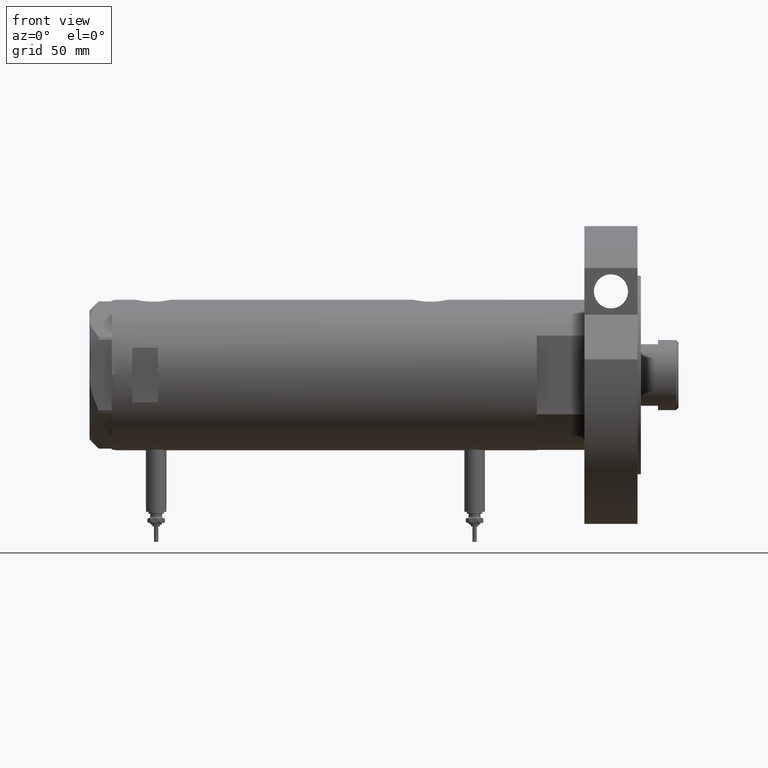
[diagram: clean part render]
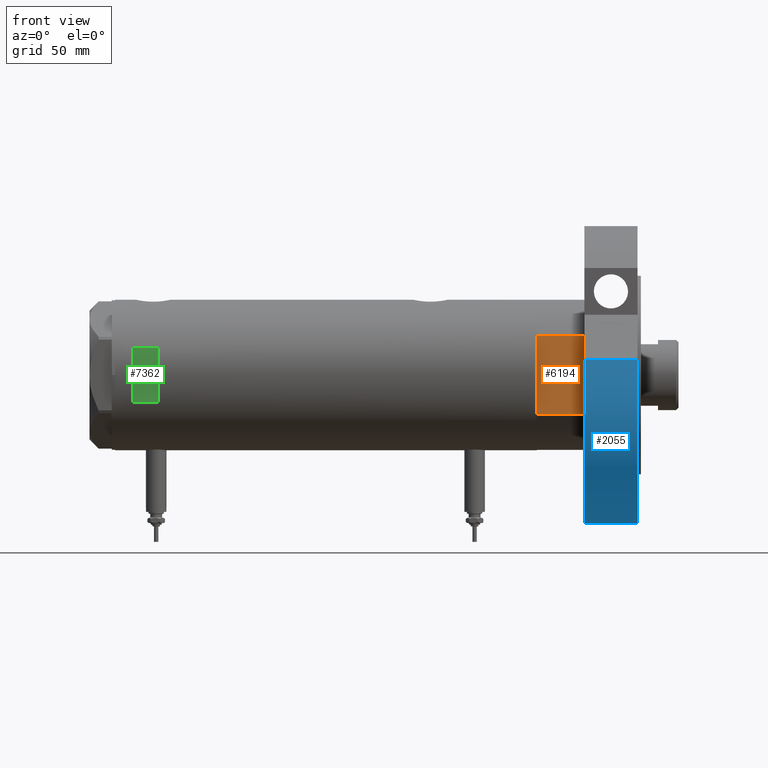
[diagram: same view with three faces highlighted in distinct colors, each labeled with its STEP entity id]
A machine part, front view with three faces highlighted in distinct colors.
Their STEP definitions:

[orange] entity #6194 — the highlighted planar face has unit normal (-0, 1, 0).
#47 = LINE ( 'NONE', #7002, #5844 ) ;
#295 = CARTESIAN_POINT ( 'NONE',  ( 13.91941090707505957, -37.50000000000000000, 0.000000000000000000 ) ) ;
#565 = ORIENTED_EDGE ( 'NONE', *, *, #6295, .F. ) ;
#795 = LINE ( 'NONE', #2012, #2580 ) ;
#928 = EDGE_CURVE ( 'NONE', #5792, #7241, #3531, .T. ) ;
#1027 = CARTESIAN_POINT ( 'NONE',  ( -23.01629857296780557, -37.50000000000000000, 0.000000000000000000 ) ) ;
#1042 = LINE ( 'NONE', #3362, #7058 ) ;
#1060 = CARTESIAN_POINT ( 'NONE',  ( -23.01629857296780557, -37.50000000000000000, 27.89999999999999858 ) ) ;
#1237 = AXIS2_PLACEMENT_3D ( 'NONE', #1754, #4046, #3470 ) ;
#1365 = CARTESIAN_POINT ( 'NONE',  ( -13.91941090707505957, -37.50000000000000000, 0.000000000000000000 ) ) ;
#1632 = EDGE_CURVE ( 'NONE', #3429, #2675, #47, .T. ) ;
#1754 = CARTESIAN_POINT ( 'NONE',  ( -23.01629857296780557, -37.50000000000000000, 0.000000000000000000 ) ) ;
#1922 = ORIENTED_EDGE ( 'NONE', *, *, #2469, .F. ) ;
#2012 = CARTESIAN_POINT ( 'NONE',  ( -23.01629857296780557, -37.50000000000000000, 0.000000000000000000 ) ) ;
#2074 = VECTOR ( 'NONE', #4122, 1000.000000000000000 ) ;
#2202 = DIRECTION ( 'NONE',  ( -1.000000000000000000, -0.000000000000000000, -0.000000000000000000 ) ) ;
#2219 = VECTOR ( 'NONE', #6915, 1000.000000000000000 ) ;
#2281 = CARTESIAN_POINT ( 'NONE',  ( -23.01629857296780557, -37.50000000000000000, 27.89999999999999858 ) ) ;
#2291 = CARTESIAN_POINT ( 'NONE',  ( -23.01629857296780557, -37.50000000000000000, 0.000000000000000000 ) ) ;
#2414 = VERTEX_POINT ( 'NONE', #5868 ) ;
#2469 = EDGE_CURVE ( 'NONE', #6278, #3429, #1042, .T. ) ;
#2580 = VECTOR ( 'NONE', #3144, 1000.000000000000000 ) ;
#2675 = VERTEX_POINT ( 'NONE', #6998 ) ;
#3144 = DIRECTION ( 'NONE',  ( -1.000000000000000000, -0.000000000000000000, -0.000000000000000000 ) ) ;
#3362 = CARTESIAN_POINT ( 'NONE',  ( -23.01629857296780557, -37.50000000000000000, 0.000000000000000000 ) ) ;
#3405 = EDGE_LOOP ( 'NONE', ( #6211, #5898, #6965, #1922, #6795, #565, #6818 ) ) ;
#3429 = VERTEX_POINT ( 'NONE', #1027 ) ;
#3470 = DIRECTION ( 'NONE',  ( 0.000000000000000000, -0.000000000000000000, 1.000000000000000000 ) ) ;
#3531 = LINE ( 'NONE', #2281, #3566 ) ;
#3547 = CARTESIAN_POINT ( 'NONE',  ( 23.01629857296780557, -37.50000000000000000, 0.000000000000000000 ) ) ;
#3566 = VECTOR ( 'NONE', #6981, 1000.000000000000000 ) ;
#4046 = DIRECTION ( 'NONE',  ( -0.000000000000000000, 1.000000000000000000, 0.000000000000000000 ) ) ;
#4122 = DIRECTION ( 'NONE',  ( -0.000000000000000000, -0.000000000000000000, 1.000000000000000000 ) ) ;
#4188 = PLANE ( 'NONE',  #1237 ) ;
#4698 = CARTESIAN_POINT ( 'NONE',  ( 0.000000000000000000, -37.50000000000000000, 27.89999999999999858 ) ) ;
#5323 = EDGE_CURVE ( 'NONE', #2414, #5792, #6993, .T. ) ;
#5609 = LINE ( 'NONE', #2291, #2219 ) ;
#5640 = VECTOR ( 'NONE', #2202, 1000.000000000000000 ) ;
#5699 = DIRECTION ( 'NONE',  ( -1.000000000000000000, -0.000000000000000000, -0.000000000000000000 ) ) ;
#5792 = VERTEX_POINT ( 'NONE', #6116 ) ;
#5844 = VECTOR ( 'NONE', #6893, 1000.000000000000000 ) ;
#5868 = CARTESIAN_POINT ( 'NONE',  ( 23.01629857296780557, -37.50000000000000000, 0.000000000000000000 ) ) ;
#5898 = ORIENTED_EDGE ( 'NONE', *, *, #7466, .T. ) ;
#6116 = CARTESIAN_POINT ( 'NONE',  ( 23.01629857296780557, -37.50000000000000000, 27.89999999999999858 ) ) ;
#6194 = ADVANCED_FACE ( 'NONE', ( #7018 ), #4188, .F. ) ;
#6211 = ORIENTED_EDGE ( 'NONE', *, *, #928, .T. ) ;
#6278 = VERTEX_POINT ( 'NONE', #1365 ) ;
#6295 = EDGE_CURVE ( 'NONE', #2414, #7325, #795, .T. ) ;
#6795 = ORIENTED_EDGE ( 'NONE', *, *, #7085, .F. ) ;
#6818 = ORIENTED_EDGE ( 'NONE', *, *, #5323, .T. ) ;
#6893 = DIRECTION ( 'NONE',  ( -0.000000000000000000, -0.000000000000000000, 1.000000000000000000 ) ) ;
#6915 = DIRECTION ( 'NONE',  ( -1.000000000000000000, -0.000000000000000000, -0.000000000000000000 ) ) ;
#6965 = ORIENTED_EDGE ( 'NONE', *, *, #1632, .F. ) ;
#6981 = DIRECTION ( 'NONE',  ( -1.000000000000000000, -0.000000000000000000, -0.000000000000000000 ) ) ;
#6993 = LINE ( 'NONE', #3547, #2074 ) ;
#6998 = CARTESIAN_POINT ( 'NONE',  ( -23.01629857296780557, -37.50000000000000000, 27.89999999999999858 ) ) ;
#7002 = CARTESIAN_POINT ( 'NONE',  ( -23.01629857296780557, -37.50000000000000000, 0.000000000000000000 ) ) ;
#7018 = FACE_OUTER_BOUND ( 'NONE', #3405, .T. ) ;
#7058 = VECTOR ( 'NONE', #5699, 1000.000000000000000 ) ;
#7085 = EDGE_CURVE ( 'NONE', #7325, #6278, #5609, .T. ) ;
#7241 = VERTEX_POINT ( 'NONE', #4698 ) ;
#7325 = VERTEX_POINT ( 'NONE', #295 ) ;
#7426 = LINE ( 'NONE', #1060, #5640 ) ;
#7466 = EDGE_CURVE ( 'NONE', #7241, #2675, #7426, .T. ) ;

[blue] entity #2055 — the highlighted cylindrical surface (partial cylindrical patch) has radius 87 mm, axis along (-1, -0, 0).
#233 = CARTESIAN_POINT ( 'NONE',  ( 0.000000000000000000, 0.000000000000000000, 31.00000000000000000 ) ) ;
#309 = CARTESIAN_POINT ( 'NONE',  ( -87.00000000000000000, 0.000000000000000000, 0.000000000000000000 ) ) ;
#354 = AXIS2_PLACEMENT_3D ( 'NONE', #233, #3858, #4320 ) ;
#403 = VERTEX_POINT ( 'NONE', #2603 ) ;
#459 = VERTEX_POINT ( 'NONE', #2255 ) ;
#533 = CARTESIAN_POINT ( 'NONE',  ( 0.000000000000000000, 0.000000000000000000, 0.000000000000000000 ) ) ;
#832 = CARTESIAN_POINT ( 'NONE',  ( 0.000000000000000000, 0.000000000000000000, 31.00000000000000000 ) ) ;
#890 = DIRECTION ( 'NONE',  ( 1.000000000000000000, 0.000000000000000000, 0.000000000000000000 ) ) ;
#1117 = CIRCLE ( 'NONE', #5369, 87.00000000000000000 ) ;
#1325 = ORIENTED_EDGE ( 'NONE', *, *, #5778, .T. ) ;
#1520 = DIRECTION ( 'NONE',  ( -0.000000000000000000, -0.000000000000000000, 1.000000000000000000 ) ) ;
#1965 = VERTEX_POINT ( 'NONE', #2699 ) ;
#2055 = ADVANCED_FACE ( 'NONE', ( #3838 ), #3691, .T. ) ;
#2255 = CARTESIAN_POINT ( 'NONE',  ( 9.196694222441541555, 86.51254715576759224, 0.000000000000000000 ) ) ;
#2258 = ORIENTED_EDGE ( 'NONE', *, *, #7303, .F. ) ;
#2288 = EDGE_LOOP ( 'NONE', ( #2258, #6693, #7123, #1325 ) ) ;
#2548 = CARTESIAN_POINT ( 'NONE',  ( -87.00000000000000000, 0.000000000000000000, 31.00000000000000000 ) ) ;
#2603 = CARTESIAN_POINT ( 'NONE',  ( -87.00000000000000000, 0.000000000000000000, 31.00000000000000000 ) ) ;
#2699 = CARTESIAN_POINT ( 'NONE',  ( 9.196694222441541555, 86.51254715576759224, 31.00000000000000000 ) ) ;
#2803 = VECTOR ( 'NONE', #1520, 1000.000000000000000 ) ;
#3122 = DIRECTION ( 'NONE',  ( 0.000000000000000000, 0.000000000000000000, 1.000000000000000000 ) ) ;
#3194 = LINE ( 'NONE', #2548, #6129 ) ;
#3691 = CYLINDRICAL_SURFACE ( 'NONE', #5349, 87.00000000000000000 ) ;
#3729 = DIRECTION ( 'NONE',  ( -0.000000000000000000, -0.000000000000000000, -1.000000000000000000 ) ) ;
#3838 = FACE_OUTER_BOUND ( 'NONE', #2288, .T. ) ;
#3858 = DIRECTION ( 'NONE',  ( 0.000000000000000000, 0.000000000000000000, 1.000000000000000000 ) ) ;
#4320 = DIRECTION ( 'NONE',  ( 1.000000000000000000, 0.000000000000000000, 0.000000000000000000 ) ) ;
#4469 = EDGE_CURVE ( 'NONE', #459, #1965, #6748, .T. ) ;
#4666 = VERTEX_POINT ( 'NONE', #309 ) ;
#4671 = EDGE_CURVE ( 'NONE', #1965, #403, #6118, .T. ) ;
#5349 = AXIS2_PLACEMENT_3D ( 'NONE', #832, #6746, #6060 ) ;
#5369 = AXIS2_PLACEMENT_3D ( 'NONE', #533, #3122, #890 ) ;
#5778 = EDGE_CURVE ( 'NONE', #459, #4666, #1117, .T. ) ;
#6060 = DIRECTION ( 'NONE',  ( -1.000000000000000000, 0.000000000000000000, 0.000000000000000000 ) ) ;
#6118 = CIRCLE ( 'NONE', #354, 87.00000000000000000 ) ;
#6129 = VECTOR ( 'NONE', #3729, 1000.000000000000000 ) ;
#6257 = CARTESIAN_POINT ( 'NONE',  ( 9.196694222441541555, 86.51254715576759224, 0.000000000000000000 ) ) ;
#6693 = ORIENTED_EDGE ( 'NONE', *, *, #4671, .F. ) ;
#6746 = DIRECTION ( 'NONE',  ( -0.000000000000000000, -0.000000000000000000, -1.000000000000000000 ) ) ;
#6748 = LINE ( 'NONE', #6257, #2803 ) ;
#7123 = ORIENTED_EDGE ( 'NONE', *, *, #4469, .F. ) ;
#7303 = EDGE_CURVE ( 'NONE', #403, #4666, #3194, .T. ) ;

[green] entity #7362 — the highlighted planar face has unit normal (-0, 1, 0).
#177 = FACE_OUTER_BOUND ( 'NONE', #4817, .T. ) ;
#179 = CARTESIAN_POINT ( 'NONE',  ( -15.96871942267131672, -40.99999999999999289, -123.2000000000000028 ) ) ;
#657 = EDGE_CURVE ( 'NONE', #1895, #5932, #763, .T. ) ;
#763 = LINE ( 'NONE', #179, #4761 ) ;
#801 = ORIENTED_EDGE ( 'NONE', *, *, #6654, .F. ) ;
#1062 = CARTESIAN_POINT ( 'NONE',  ( 15.96871942267131672, -40.99999999999999289, -123.2000000000000028 ) ) ;
#1147 = DIRECTION ( 'NONE',  ( 0.000000000000000000, 0.000000000000000000, 1.000000000000000000 ) ) ;
#1180 = LINE ( 'NONE', #1062, #6469 ) ;
#1646 = CARTESIAN_POINT ( 'NONE',  ( -15.96871942267132027, -40.99999999999999289, 98.19999999999998863 ) ) ;
#1895 = VERTEX_POINT ( 'NONE', #5372 ) ;
#1899 = CARTESIAN_POINT ( 'NONE',  ( -44.00000000000000000, -40.99999999999999289, 113.1999999999999886 ) ) ;
#2566 = ORIENTED_EDGE ( 'NONE', *, *, #2922, .T. ) ;
#2715 = LINE ( 'NONE', #5610, #4252 ) ;
#2922 = EDGE_CURVE ( 'NONE', #5932, #4299, #2715, .T. ) ;
#3341 = ORIENTED_EDGE ( 'NONE', *, *, #3483, .T. ) ;
#3483 = EDGE_CURVE ( 'NONE', #4299, #4042, #1180, .T. ) ;
#3601 = DIRECTION ( 'NONE',  ( 1.000000000000000000, -0.000000000000000000, -0.000000000000000000 ) ) ;
#3803 = AXIS2_PLACEMENT_3D ( 'NONE', #1899, #6708, #7276 ) ;
#3857 = CARTESIAN_POINT ( 'NONE',  ( -44.00000000000000000, -40.99999999999999289, 113.1999999999999886 ) ) ;
#4042 = VERTEX_POINT ( 'NONE', #5042 ) ;
#4205 = ORIENTED_EDGE ( 'NONE', *, *, #657, .T. ) ;
#4252 = VECTOR ( 'NONE', #5571, 1000.000000000000000 ) ;
#4299 = VERTEX_POINT ( 'NONE', #5525 ) ;
#4761 = VECTOR ( 'NONE', #5451, 1000.000000000000000 ) ;
#4779 = VECTOR ( 'NONE', #3601, 1000.000000000000000 ) ;
#4817 = EDGE_LOOP ( 'NONE', ( #4205, #2566, #3341, #801 ) ) ;
#5042 = CARTESIAN_POINT ( 'NONE',  ( 15.96871942267132027, -40.99999999999999289, 113.1999999999999886 ) ) ;
#5372 = CARTESIAN_POINT ( 'NONE',  ( -15.96871942267132027, -40.99999999999999289, 113.1999999999999886 ) ) ;
#5451 = DIRECTION ( 'NONE',  ( -0.000000000000000000, -0.000000000000000000, -1.000000000000000000 ) ) ;
#5525 = CARTESIAN_POINT ( 'NONE',  ( 15.96871942267132027, -40.99999999999999289, 98.19999999999998863 ) ) ;
#5571 = DIRECTION ( 'NONE',  ( 1.000000000000000000, -0.000000000000000000, -0.000000000000000000 ) ) ;
#5576 = LINE ( 'NONE', #3857, #4779 ) ;
#5610 = CARTESIAN_POINT ( 'NONE',  ( -44.00000000000000000, -40.99999999999999289, 98.19999999999998863 ) ) ;
#5932 = VERTEX_POINT ( 'NONE', #1646 ) ;
#6469 = VECTOR ( 'NONE', #1147, 1000.000000000000000 ) ;
#6654 = EDGE_CURVE ( 'NONE', #1895, #4042, #5576, .T. ) ;
#6708 = DIRECTION ( 'NONE',  ( 0.000000000000000000, 1.000000000000000000, 0.000000000000000000 ) ) ;
#7126 = PLANE ( 'NONE',  #3803 ) ;
#7276 = DIRECTION ( 'NONE',  ( 0.000000000000000000, -0.000000000000000000, 1.000000000000000000 ) ) ;
#7362 = ADVANCED_FACE ( 'NONE', ( #177 ), #7126, .F. ) ;